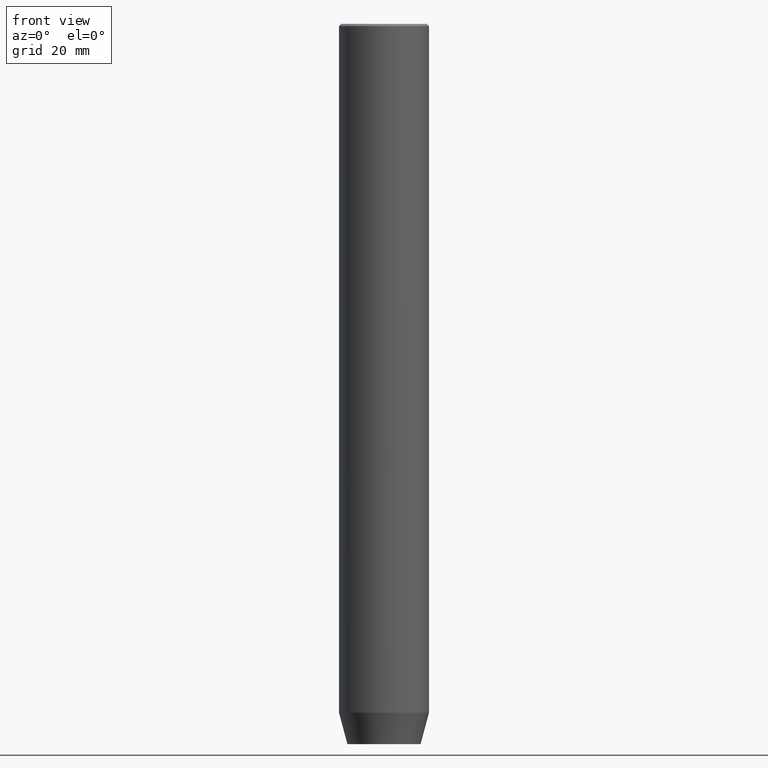
[diagram: clean part render]
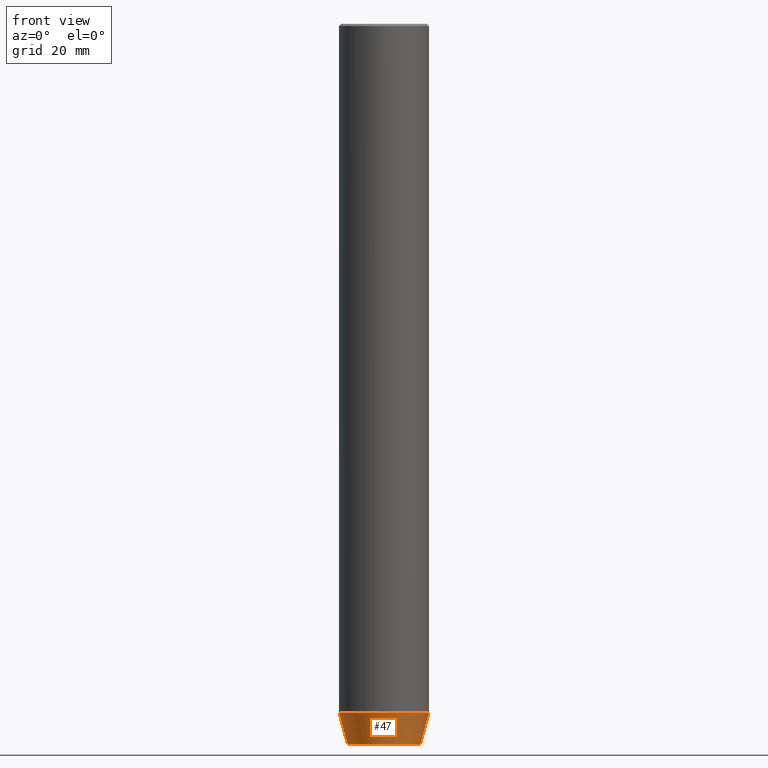
[diagram: same view with one face highlighted and labeled with its STEP entity id]
A machine part, front view. The second image highlights one B-rep face of the part: STEP entity #47.
In plain terms, the highlighted conical surface has half-angle 15 deg.
Its self-contained STEP definition (entity closure, byte-faithful):
#13 = ORIENTED_EDGE ( 'NONE', *, *, #194, .F. ) ;
#21 = VECTOR ( 'NONE', #292, 1000.000000000000114 ) ;
#39 = EDGE_CURVE ( 'NONE', #198, #496, #560, .T. ) ;
#47 = ADVANCED_FACE ( 'NONE', ( #439 ), #90, .T. ) ;
#73 = CARTESIAN_POINT ( 'NONE',  ( -8.124355652982130138, 1.109796706851640162E-15, -160.0000000000000000 ) ) ;
#90 = CONICAL_SURFACE ( 'NONE', #422, 10.00000000000000000, 0.2617993877991497409 ) ;
#100 = VECTOR ( 'NONE', #466, 1000.000000000000114 ) ;
#108 = CARTESIAN_POINT ( 'NONE',  ( -10.00000000000000000, 1.224646799147353256E-15, -152.9999999999999716 ) ) ;
#113 = AXIS2_PLACEMENT_3D ( 'NONE', #216, #267, #226 ) ;
#130 = ORIENTED_EDGE ( 'NONE', *, *, #39, .T. ) ;
#177 = ORIENTED_EDGE ( 'NONE', *, *, #327, .F. ) ;
#184 = EDGE_CURVE ( 'NONE', #544, #198, #528, .T. ) ;
#187 = AXIS2_PLACEMENT_3D ( 'NONE', #472, #245, #274 ) ;
#194 = EDGE_CURVE ( 'NONE', #330, #496, #443, .T. ) ;
#196 = DIRECTION ( 'NONE',  ( 1.000000000000000000, 0.000000000000000000, 0.000000000000000000 ) ) ;
#198 = VERTEX_POINT ( 'NONE', #329 ) ;
#216 = CARTESIAN_POINT ( 'NONE',  ( 0.000000000000000000, 0.000000000000000000, -160.0000000000000000 ) ) ;
#226 = DIRECTION ( 'NONE',  ( 1.000000000000000000, 0.000000000000000000, 0.000000000000000000 ) ) ;
#238 = CARTESIAN_POINT ( 'NONE',  ( 0.000000000000000000, 0.000000000000000000, -152.9999999999999716 ) ) ;
#242 = ORIENTED_EDGE ( 'NONE', *, *, #184, .T. ) ;
#245 = DIRECTION ( 'NONE',  ( -0.000000000000000000, -0.000000000000000000, 1.000000000000000000 ) ) ;
#253 = CARTESIAN_POINT ( 'NONE',  ( 10.00000000000000000, 0.000000000000000000, -152.9999999999999716 ) ) ;
#267 = DIRECTION ( 'NONE',  ( -0.000000000000000000, -0.000000000000000000, 1.000000000000000000 ) ) ;
#274 = DIRECTION ( 'NONE',  ( 1.000000000000000000, 0.000000000000000000, 0.000000000000000000 ) ) ;
#292 = DIRECTION ( 'NONE',  ( 0.2588190451025210170, 0.000000000000000000, 0.9659258262890680902 ) ) ;
#327 = EDGE_CURVE ( 'NONE', #544, #330, #549, .T. ) ;
#329 = CARTESIAN_POINT ( 'NONE',  ( 8.124355652982130138, 0.000000000000000000, -160.0000000000000000 ) ) ;
#330 = VERTEX_POINT ( 'NONE', #552 ) ;
#422 = AXIS2_PLACEMENT_3D ( 'NONE', #238, #429, #196 ) ;
#429 = DIRECTION ( 'NONE',  ( -0.000000000000000000, -0.000000000000000000, 1.000000000000000000 ) ) ;
#439 = FACE_OUTER_BOUND ( 'NONE', #510, .T. ) ;
#443 = CIRCLE ( 'NONE', #187, 10.00000000000000000 ) ;
#466 = DIRECTION ( 'NONE',  ( -0.2588190451025210170, 3.169619151431768639E-17, 0.9659258262890680902 ) ) ;
#472 = CARTESIAN_POINT ( 'NONE',  ( 0.000000000000000000, 0.000000000000000000, -152.9999999999999716 ) ) ;
#496 = VERTEX_POINT ( 'NONE', #554 ) ;
#510 = EDGE_LOOP ( 'NONE', ( #177, #242, #130, #13 ) ) ;
#528 = CIRCLE ( 'NONE', #113, 8.124355652982130138 ) ;
#544 = VERTEX_POINT ( 'NONE', #73 ) ;
#549 = LINE ( 'NONE', #108, #100 ) ;
#552 = CARTESIAN_POINT ( 'NONE',  ( -10.00000000000000000, 1.224646799147353256E-15, -152.9999999999999716 ) ) ;
#554 = CARTESIAN_POINT ( 'NONE',  ( 10.00000000000000000, 0.000000000000000000, -152.9999999999999716 ) ) ;
#560 = LINE ( 'NONE', #253, #21 ) ;